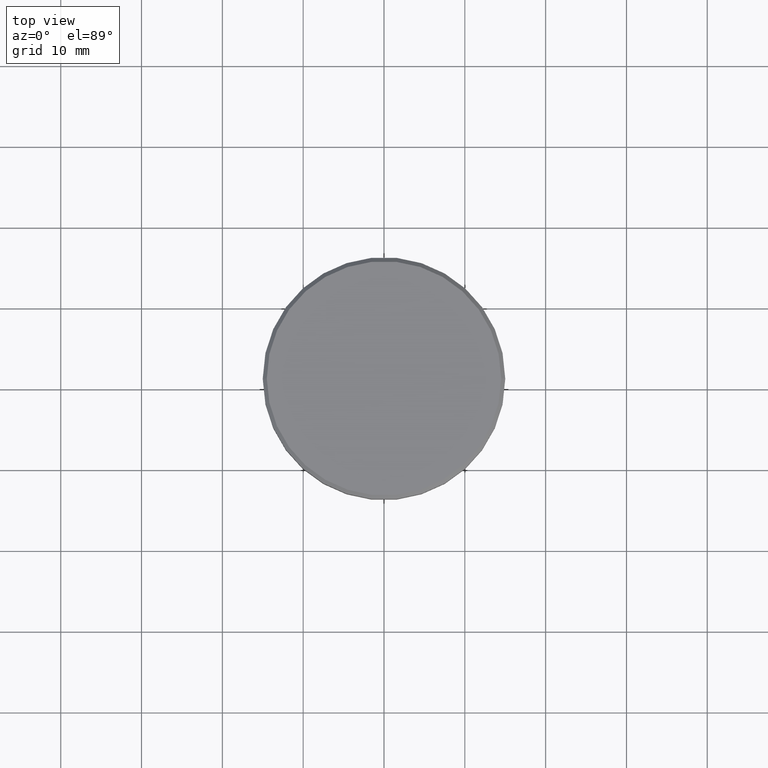
[diagram: clean part render]
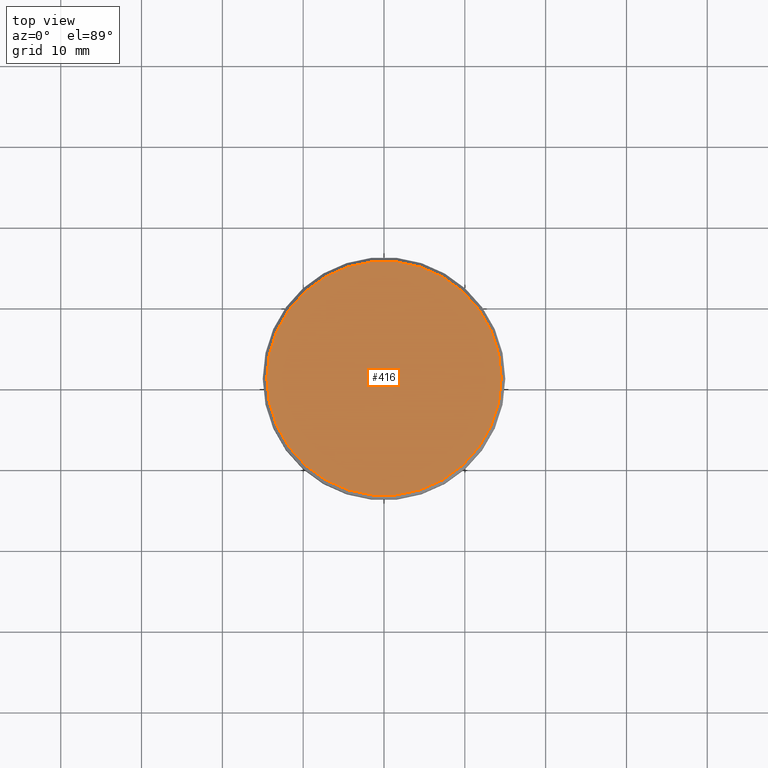
[diagram: same view with one face highlighted and labeled with its STEP entity id]
A machine part, top view. The second image highlights one B-rep face of the part: STEP entity #416.
In plain terms, the highlighted planar face has unit normal (0, -0, 1).
Its self-contained STEP definition (entity closure, byte-faithful):
#249 = AXIS2_PLACEMENT_3D ( 'NONE', #947, #678, #1043 ) ;
#265 = FACE_OUTER_BOUND ( 'NONE', #657, .T. ) ;
#273 = CARTESIAN_POINT ( 'NONE',  ( 0.000000000000000000, 0.000000000000000000, 0.000000000000000000 ) ) ;
#314 = CARTESIAN_POINT ( 'NONE',  ( -14.49999999999999645, 0.000000000000000000, 0.000000000000000000 ) ) ;
#360 = ORIENTED_EDGE ( 'NONE', *, *, #838, .T. ) ;
#383 = VERTEX_POINT ( 'NONE', #314 ) ;
#416 = ADVANCED_FACE ( 'NONE', ( #265 ), #911, .T. ) ;
#544 = DIRECTION ( 'NONE',  ( 1.000000000000000000, 0.000000000000000000, 0.000000000000000000 ) ) ;
#617 = AXIS2_PLACEMENT_3D ( 'NONE', #273, #986, #544 ) ;
#655 = AXIS2_PLACEMENT_3D ( 'NONE', #764, #672, #680 ) ;
#657 = EDGE_LOOP ( 'NONE', ( #360, #815 ) ) ;
#672 = DIRECTION ( 'NONE',  ( -0.000000000000000000, -0.000000000000000000, 1.000000000000000000 ) ) ;
#678 = DIRECTION ( 'NONE',  ( -0.000000000000000000, -0.000000000000000000, 1.000000000000000000 ) ) ;
#680 = DIRECTION ( 'NONE',  ( 1.000000000000000000, 0.000000000000000000, 0.000000000000000000 ) ) ;
#683 = EDGE_CURVE ( 'NONE', #955, #383, #1013, .T. ) ;
#764 = CARTESIAN_POINT ( 'NONE',  ( 0.000000000000000000, 0.000000000000000000, 0.000000000000000000 ) ) ;
#815 = ORIENTED_EDGE ( 'NONE', *, *, #683, .T. ) ;
#838 = EDGE_CURVE ( 'NONE', #383, #955, #1124, .T. ) ;
#911 = PLANE ( 'NONE',  #617 ) ;
#947 = CARTESIAN_POINT ( 'NONE',  ( 0.000000000000000000, 0.000000000000000000, 0.000000000000000000 ) ) ;
#951 = CARTESIAN_POINT ( 'NONE',  ( 14.49999999999999645, 1.806354028742345802E-15, 0.000000000000000000 ) ) ;
#955 = VERTEX_POINT ( 'NONE', #951 ) ;
#986 = DIRECTION ( 'NONE',  ( 0.000000000000000000, -0.000000000000000000, 1.000000000000000000 ) ) ;
#1013 = CIRCLE ( 'NONE', #249, 14.49999999999999645 ) ;
#1043 = DIRECTION ( 'NONE',  ( 1.000000000000000000, 0.000000000000000000, 0.000000000000000000 ) ) ;
#1124 = CIRCLE ( 'NONE', #655, 14.49999999999999645 ) ;